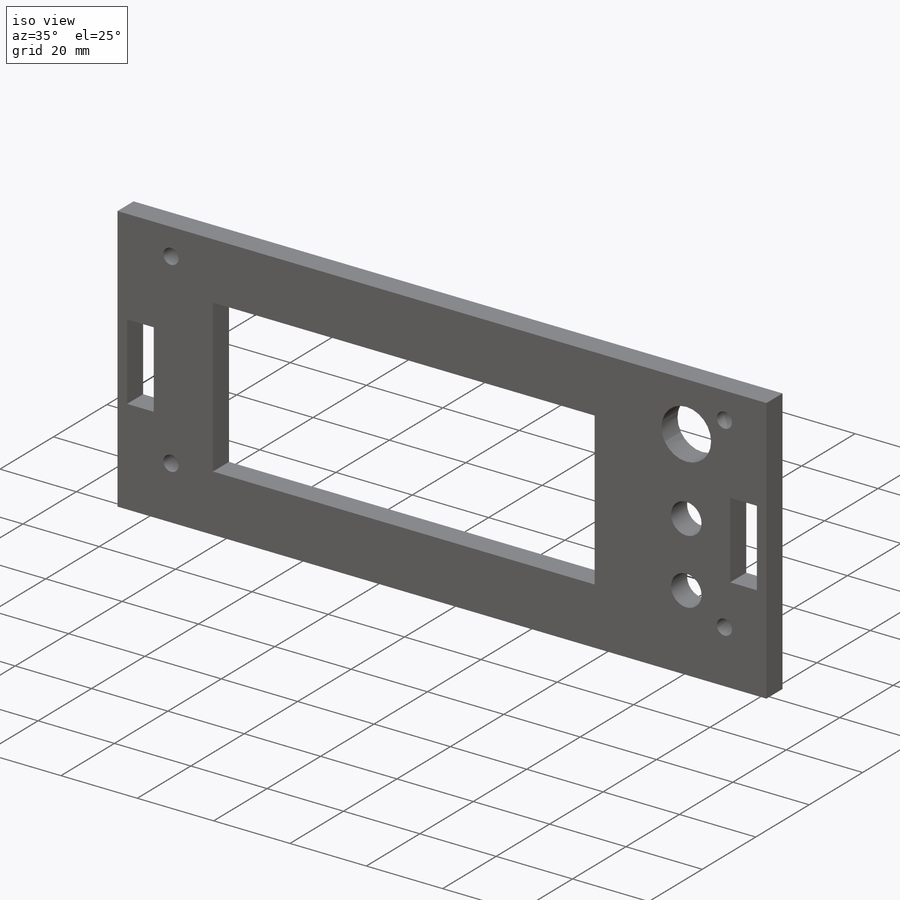
[diagram: iso view]
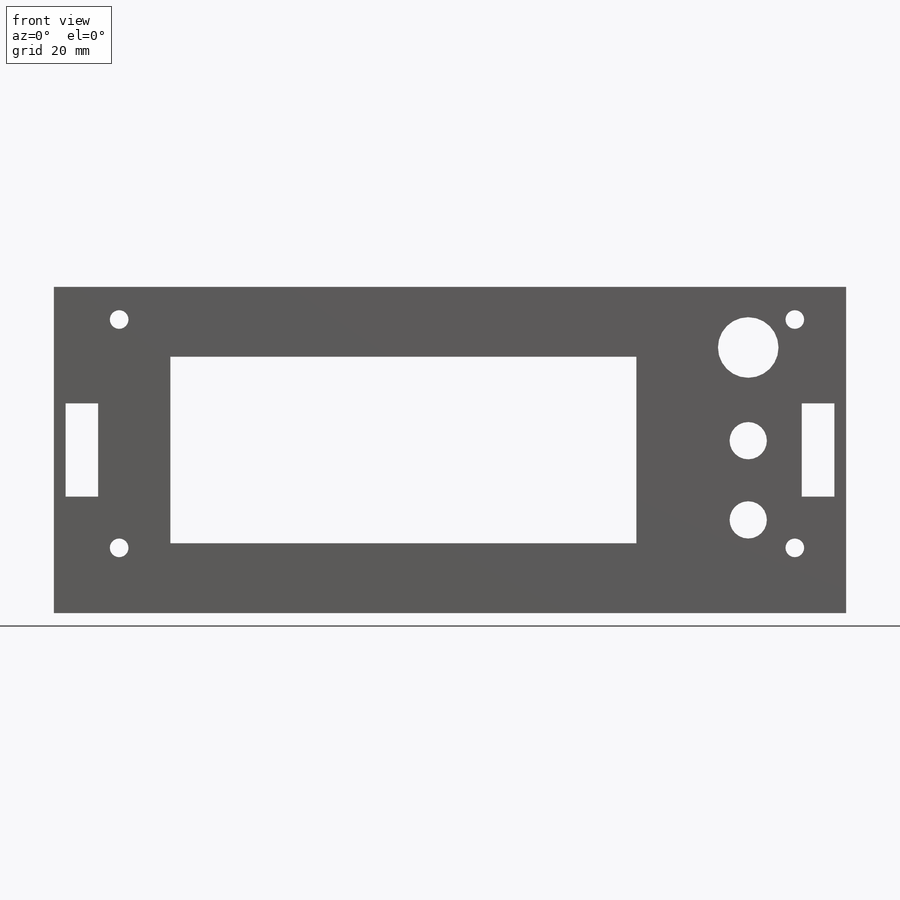
[diagram: front view]
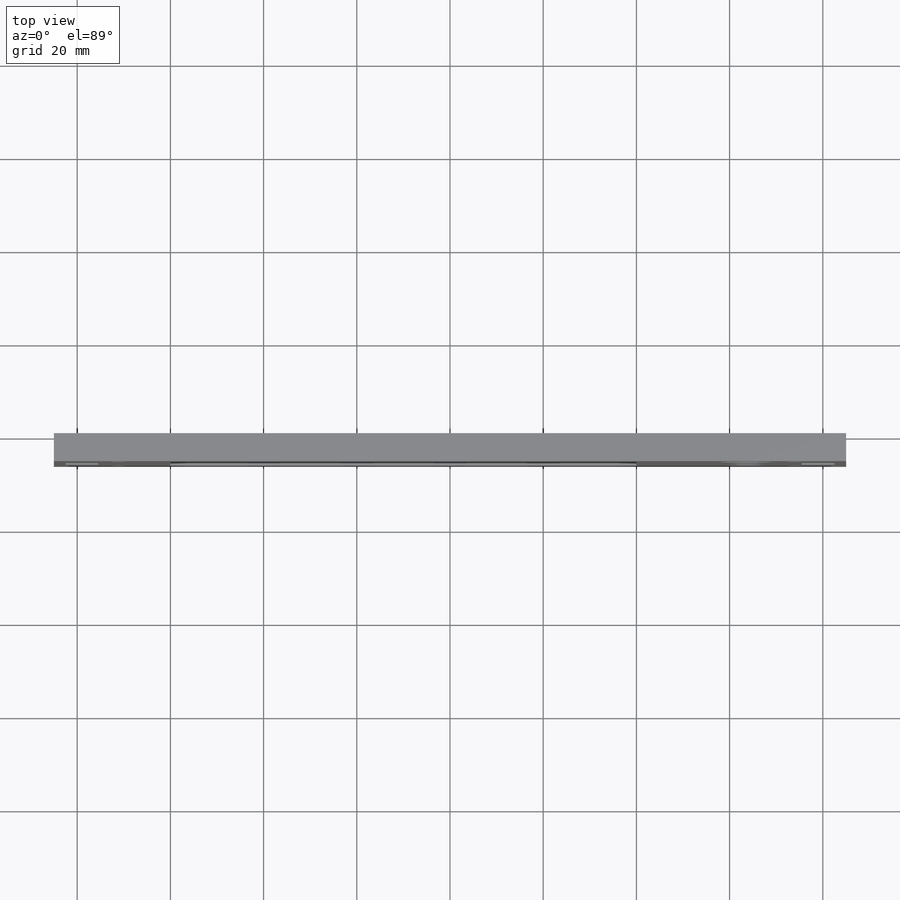
[diagram: top view]
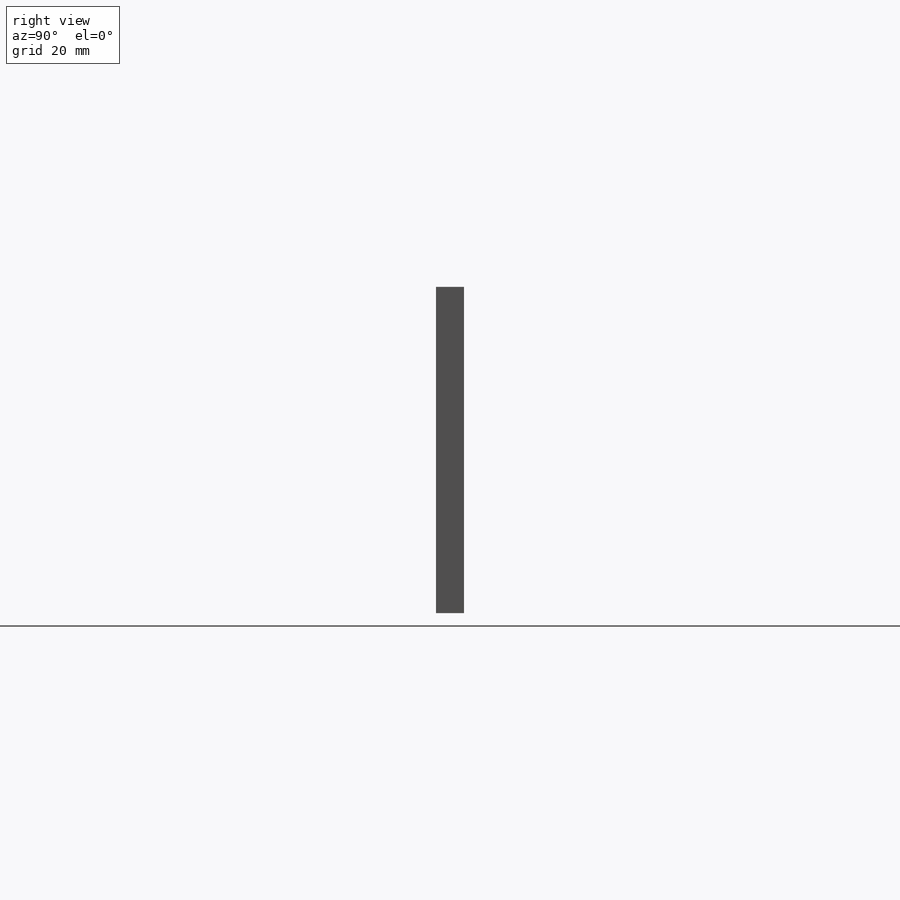
[diagram: right view]
SOLIDWORKS PART (.sldprt)
format: sldprt  version: not decoded by parser v0  size: 220,672 bytes
history: native  units: mm
features: plane x3, sketch x3, cut_extrude x2, material x1, extrude x1, mirror x1 (+10 scaffold rows collapsed)
feature tree (21):
  scaffold x10  (default folders/planes/origin — collapsed)
  material  "Matériau <non spécifié>"
  plane  "Plan de face"
  plane  "Plan de dessus"
  plane  "Plan de droite"
  sketch  "Esquisse1"  dims[D1=175.0mm D2=70.0mm D3=100.0mm D4=42.0mm D5=24.0mm D6=12.0mm]
  extrude  "Boss.-Extru.1"  Depth=6mm
  sketch  "Esquisse2"  dims[D4=4.0mm D1=7.0mm D2=20.0mm D3=6.0mm D5=15.6mm]
  cut_extrude  "Enlèv. mat.-Extru.1"  Depth=6mm
  mirror  "Symétrie1"
  sketch  "Esquisse3"  dims[c1.D5=4.0mm c1.D8=13.0mm c1.D9=8.0mm c1.D1=144.5mm c1.D2=49.5mm c1.D3=14.0mm c1.D4=7.0mm c1.D6=20.0mm c1.D7=35.0mm c1.D10=23.5mm c1.D11=~1.884313mm c2.D10=11.0mm c2.D11=8.0mm c2.D6=9.75mm c2.D7=10.25mm c3.D10=11.25mm c3.D11=8.0mm c3.D12=27.0mm c3.D13=43.25mm]
  cut_extrude  "Enlèv. mat.-Extru.2"  Depth=6mm
decode coverage: 6 of 7 modeling features carry decoded parameters
note: ~ marks probable driven/reference dimensions
note: suppression state not decoded; provenance and decode notes live in map.json
